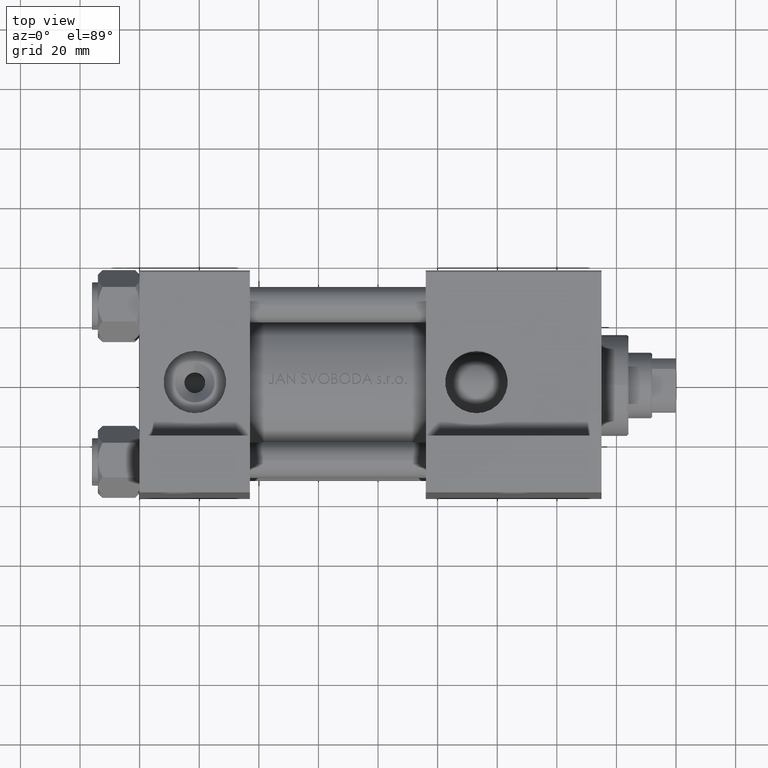
[diagram: clean part render]
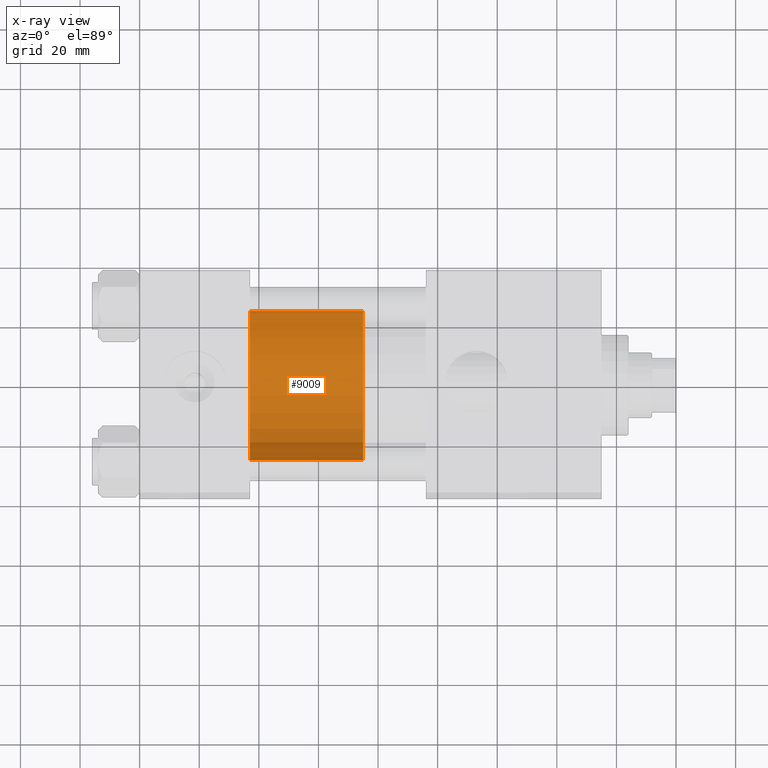
[diagram: x-ray — body ghosted, one internal face saturated and labeled with its STEP entity id]
A machine part, top view, then the same camera in x-ray: the body is ghosted and one INTERNAL B-rep face — a face not visible from any outside direction — is saturated and labeled: STEP entity #9009.
In plain terms, the highlighted cylindrical surface (partial cylindrical patch) has radius 25 mm, axis along (-1, 0, 0).
Its self-contained STEP definition (entity closure, byte-faithful):
#811 = CARTESIAN_POINT ( 'NONE',  ( 0.000000000000000000, 0.000000000000000000, 38.00000000000000000 ) ) ;
#1227 = DIRECTION ( 'NONE',  ( 1.000000000000000000, 0.000000000000000000, 0.000000000000000000 ) ) ;
#2384 = ORIENTED_EDGE ( 'NONE', *, *, #45599, .F. ) ;
#2569 = VECTOR ( 'NONE', #40873, 1000.000000000000000 ) ;
#3437 = CARTESIAN_POINT ( 'NONE',  ( 25.00000000000000000, 3.061616997868383043E-15, 38.00000000000000000 ) ) ;
#3765 = CARTESIAN_POINT ( 'NONE',  ( 25.00000000000000000, 3.061616997868383043E-15, 38.00000000000000000 ) ) ;
#5430 = CIRCLE ( 'NONE', #31551, 25.00000000000000000 ) ;
#5508 = EDGE_CURVE ( 'NONE', #35986, #44909, #5430, .T. ) ;
#5762 = EDGE_LOOP ( 'NONE', ( #37247, #42895, #45198, #2384 ) ) ;
#8148 = CIRCLE ( 'NONE', #13723, 25.00000000000000000 ) ;
#9009 = ADVANCED_FACE ( 'NONE', ( #42899 ), #27467, .T. ) ;
#9196 = DIRECTION ( 'NONE',  ( 0.000000000000000000, 0.000000000000000000, 1.000000000000000000 ) ) ;
#13509 = LINE ( 'NONE', #13750, #2569 ) ;
#13723 = AXIS2_PLACEMENT_3D ( 'NONE', #31858, #9196, #1227 ) ;
#13750 = CARTESIAN_POINT ( 'NONE',  ( -25.00000000000000000, 0.000000000000000000, 38.00000000000000000 ) ) ;
#14745 = CARTESIAN_POINT ( 'NONE',  ( -25.00000000000000000, 0.000000000000000000, 38.00000000000000000 ) ) ;
#20229 = CARTESIAN_POINT ( 'NONE',  ( 0.000000000000000000, 0.000000000000000000, 0.000000000000000000 ) ) ;
#22204 = DIRECTION ( 'NONE',  ( -0.000000000000000000, -0.000000000000000000, -1.000000000000000000 ) ) ;
#24349 = EDGE_CURVE ( 'NONE', #32683, #35986, #30673, .T. ) ;
#27467 = CYLINDRICAL_SURFACE ( 'NONE', #47582, 25.00000000000000000 ) ;
#30673 = LINE ( 'NONE', #3765, #34046 ) ;
#31204 = DIRECTION ( 'NONE',  ( -1.000000000000000000, 0.000000000000000000, 0.000000000000000000 ) ) ;
#31551 = AXIS2_PLACEMENT_3D ( 'NONE', #20229, #31685, #42403 ) ;
#31685 = DIRECTION ( 'NONE',  ( 0.000000000000000000, 0.000000000000000000, 1.000000000000000000 ) ) ;
#31858 = CARTESIAN_POINT ( 'NONE',  ( 0.000000000000000000, 0.000000000000000000, 38.00000000000000000 ) ) ;
#32683 = VERTEX_POINT ( 'NONE', #3437 ) ;
#34046 = VECTOR ( 'NONE', #22204, 1000.000000000000000 ) ;
#35986 = VERTEX_POINT ( 'NONE', #39504 ) ;
#36990 = EDGE_CURVE ( 'NONE', #32683, #44233, #8148, .T. ) ;
#37247 = ORIENTED_EDGE ( 'NONE', *, *, #36990, .F. ) ;
#39504 = CARTESIAN_POINT ( 'NONE',  ( 25.00000000000000000, 3.061616997868383043E-15, 0.000000000000000000 ) ) ;
#40014 = CARTESIAN_POINT ( 'NONE',  ( -25.00000000000000000, 0.000000000000000000, 0.000000000000000000 ) ) ;
#40873 = DIRECTION ( 'NONE',  ( -0.000000000000000000, -0.000000000000000000, -1.000000000000000000 ) ) ;
#42403 = DIRECTION ( 'NONE',  ( 1.000000000000000000, 0.000000000000000000, 0.000000000000000000 ) ) ;
#42895 = ORIENTED_EDGE ( 'NONE', *, *, #24349, .T. ) ;
#42899 = FACE_OUTER_BOUND ( 'NONE', #5762, .T. ) ;
#44233 = VERTEX_POINT ( 'NONE', #14745 ) ;
#44909 = VERTEX_POINT ( 'NONE', #40014 ) ;
#45198 = ORIENTED_EDGE ( 'NONE', *, *, #5508, .T. ) ;
#45599 = EDGE_CURVE ( 'NONE', #44233, #44909, #13509, .T. ) ;
#46389 = DIRECTION ( 'NONE',  ( -0.000000000000000000, -0.000000000000000000, -1.000000000000000000 ) ) ;
#47582 = AXIS2_PLACEMENT_3D ( 'NONE', #811, #46389, #31204 ) ;